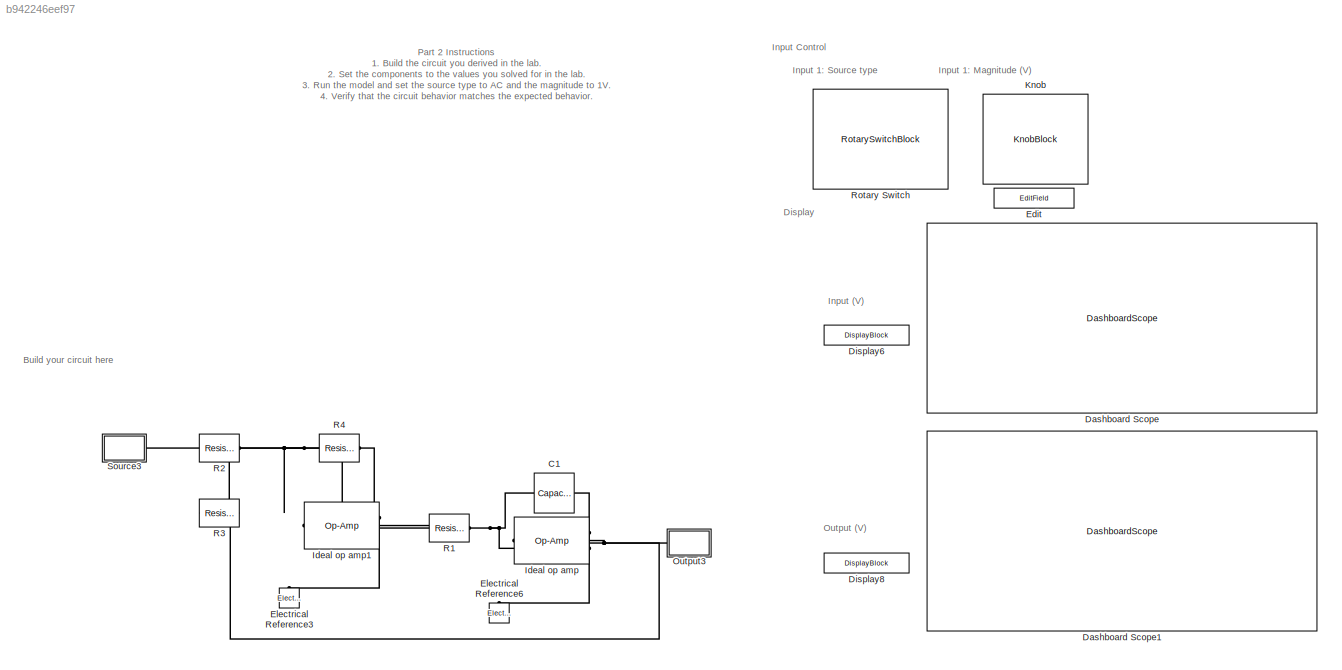
MODEL slx_b942246eef97
KIND model
CONFIG AbsTol = auto
CONFIG EnableMultiTasking = off
CONFIG FixedStep = auto
CONFIG MaxStep = 1e-5
CONFIG MinStep = auto
CONFIG RelTol = 1e-3
CONFIG SampleTimeConstraint = Unconstrained
CONFIG SolverName = VariableStepAuto
CONFIG StartTime = 0.0
CONFIG StopTime = inf
BLOCK [Reference] C1  REF=fl_lib/Electrical/Electrical Elements/Capacitor
  AttributesFormatString = %<c> %<c_unit>
  NameLocation = top
  Ports = [0, 0, 0, 0, 0, 1, 1]
  SourceBlock = fl_lib/Electrical/Electrical Elements/Capacitor
  SourceProductBaseCode = SS
  SourceType = Capacitor
BLOCK [DashboardScope] Dashboard Scope
  ScaleAtStop = off
  TimeSpan = 0.10000000000000001
  Ymax = 10
  Ymin = -10
BLOCK [DashboardScope] Dashboard Scope1
  ScaleAtStop = off
  TimeSpan = 0.10000000000000001
  Ymax = 10
  Ymin = -10
BLOCK [DisplayBlock] Display6
  Alignment = Right
  Format = Custom
  FormatString = %0.4f
  LabelPosition = Hide
  Transparency = 1
BLOCK [DisplayBlock] Display8
  Alignment = Right
  Format = Custom
  FormatString = %0.4f
  LabelPosition = Hide
  Transparency = 1
BLOCK [EditField] Edit
  Alignment = Center
  LabelPosition = Hide
  ShowInitialText = on
BLOCK [Reference] Electrical Reference3  REF=fl_lib/Electrical/Electrical Elements/Electrical Reference
  NameLocation = right
  Ports = [0, 0, 0, 0, 0, 1]
  SourceBlock = fl_lib/Electrical/Electrical Elements/Electrical Reference
  SourceProductBaseCode = SS
  SourceType = Electrical Reference
BLOCK [Reference] Electrical Reference6  REF=fl_lib/Electrical/Electrical Elements/Electrical Reference
  NameLocation = right
  Ports = [0, 0, 0, 0, 0, 1]
  SourceBlock = fl_lib/Electrical/Electrical Elements/Electrical Reference
  SourceProductBaseCode = SS
  SourceType = Electrical Reference
BLOCK [Reference] Ideal op amp  REF=fl_lib/Electrical/Electrical Elements/Op-Amp
  Ports = [0, 0, 0, 0, 0, 2, 1]
  SourceBlock = fl_lib/Electrical/Electrical Elements/Op-Amp
  SourceProductBaseCode = SS
  SourceType = Op-Amp
BLOCK [Reference] Ideal op amp1  REF=fl_lib/Electrical/Electrical Elements/Op-Amp
  Ports = [0, 0, 0, 0, 0, 2, 1]
  SourceBlock = fl_lib/Electrical/Electrical Elements/Op-Amp
  SourceProductBaseCode = SS
  SourceType = Op-Amp
BLOCK [KnobBlock] Knob
  LabelPosition = Hide
  ScaleMax = 4
  ScaleMin = -4
  TickInterval = 1
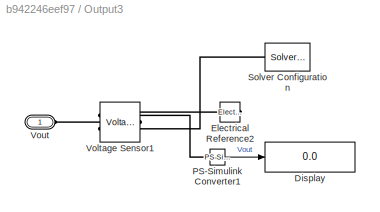
BLOCK [SubSystem] Output3
  Ports = [0, 0, 0, 0, 0, 1]
  RequestExecContextInheritance = off
BLOCK [Display] Output3/Display
  Decimation = 1
  Ports = [1]
BLOCK [Reference] Output3/Electrical Reference2  REF=fl_lib/Electrical/Electrical Elements/Electrical Reference
  NameLocation = top
  Ports = [0, 0, 0, 0, 0, 1]
  SourceBlock = fl_lib/Electrical/Electrical Elements/Electrical Reference
  SourceProductBaseCode = SS
  SourceType = Electrical Reference
BLOCK [Reference] Output3/PS-Simulink Converter1  REF=nesl_utility/PS-Simulink
Converter
  Ports = [0, 1, 0, 0, 0, 1]
  SourceBlock = nesl_utility/PS-Simulink\nConverter
  SourceProductBaseCode = PW,SS
  SourceType = PS-Simulink\nConverter
BLOCK [Reference] Output3/Solver Configuration  REF=nesl_utility/Solver
Configuration
  NameLocation = top
  Ports = [0, 0, 0, 0, 0, 0, 1]
  SourceBlock = nesl_utility/Solver\nConfiguration
  SourceProductBaseCode = PW,SS
  SourceType = Solver\nConfiguration
BLOCK [Reference] Output3/Voltage Sensor1  REF=fl_lib/Electrical/Electrical Sensors/Voltage Sensor
  NameLocation = top
  Ports = [0, 0, 0, 0, 0, 1, 2]
  SourceBlock = fl_lib/Electrical/Electrical Sensors/Voltage Sensor
  SourceProductBaseCode = SS
  SourceType = Voltage Sensor
BLOCK [PMIOPort] Output3/Vout
  Side = Left
BLOCK [Reference] R1  REF=fl_lib/Electrical/Electrical Elements/Resistor
  AttributesFormatString = %<R> %<R_unit>
  NameLocation = top
  Ports = [0, 0, 0, 0, 0, 1, 1]
  SourceBlock = fl_lib/Electrical/Electrical Elements/Resistor
  SourceProductBaseCode = SS
  SourceType = Resistor
BLOCK [Reference] R2  REF=fl_lib/Electrical/Electrical Elements/Resistor
  AttributesFormatString = %<R> %<R_unit>
  NameLocation = top
  Ports = [0, 0, 0, 0, 0, 1, 1]
  SourceBlock = fl_lib/Electrical/Electrical Elements/Resistor
  SourceProductBaseCode = SS
  SourceType = Resistor
BLOCK [Reference] R3  REF=fl_lib/Electrical/Electrical Elements/Resistor
  AttributesFormatString = %<R> %<R_unit>
  Ports = [0, 0, 0, 0, 0, 1, 1]
  SourceBlock = fl_lib/Electrical/Electrical Elements/Resistor
  SourceProductBaseCode = SS
  SourceType = Resistor
BLOCK [Reference] R4  REF=fl_lib/Electrical/Electrical Elements/Resistor
  AttributesFormatString = %<R> %<R_unit>
  NameLocation = top
  Ports = [0, 0, 0, 0, 0, 1, 1]
  SourceBlock = fl_lib/Electrical/Electrical Elements/Resistor
  SourceProductBaseCode = SS
  SourceType = Resistor
BLOCK [RotarySwitchBlock] Rotary Switch
  LabelPosition = Hide
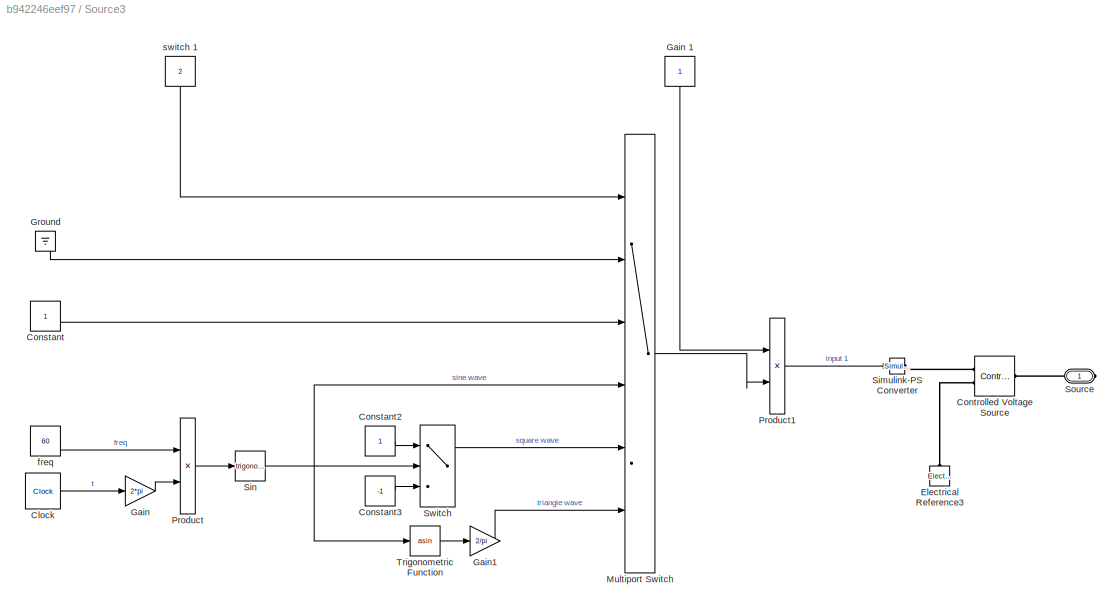
BLOCK [SubSystem] Source3
  Ports = [0, 0, 0, 0, 0, 0, 1]
  RequestExecContextInheritance = off
BLOCK [Clock] Source3/Clock
BLOCK [Constant] Source3/Constant
BLOCK [Constant] Source3/Constant2
  SampleTime = 0
BLOCK [Constant] Source3/Constant3
  SampleTime = 0
  Value = -1
BLOCK [Reference] Source3/Controlled Voltage Source  REF=fl_lib/Electrical/Electrical Sources/Controlled Voltage
Source
  NameLocation = top
  Ports = [0, 0, 0, 0, 0, 1, 2]
  SourceBlock = fl_lib/Electrical/Electrical Sources/Controlled Voltage\nSource
  SourceProductBaseCode = SS
  SourceType = Controlled Voltage\nSource
BLOCK [Reference] Source3/Electrical Reference3  REF=fl_lib/Electrical/Electrical Elements/Electrical Reference
  NameLocation = right
  Ports = [0, 0, 0, 0, 0, 1]
  SourceBlock = fl_lib/Electrical/Electrical Elements/Electrical Reference
  SourceProductBaseCode = SS
  SourceType = Electrical Reference
BLOCK [Gain] Source3/Gain
  Gain = 2*pi
BLOCK [Constant] Source3/Gain 1
  NameLocation = top
BLOCK [Gain] Source3/Gain1
  Gain = 2/pi
BLOCK [Ground] Source3/Ground
BLOCK [MultiPortSwitch] Source3/Multiport Switch
  DataPortOrder = Zero-based contiguous
  InputSameDT = off
  Inputs = 5
  Ports = [6, 1]
  SaturateOnIntegerOverflow = off
  zeroidx = on
BLOCK [Product] Source3/Product
  Ports = [2, 1]
BLOCK [Product] Source3/Product1
  Ports = [2, 1]
BLOCK [Reference] Source3/Simulink-PS Converter  REF=nesl_utility/Simulink-PS
Converter
  Ports = [1, 0, 0, 0, 0, 0, 1]
  SourceBlock = nesl_utility/Simulink-PS\nConverter
  SourceProductBaseCode = PW,SS
  SourceType = Simulink-PS\nConverter
BLOCK [Trigonometry] Source3/Sin
  Ports = [1, 1]
BLOCK [PMIOPort] Source3/Source
  Side = Right
BLOCK [Switch] Source3/Switch
  Criteria = u2 > Threshold
  InputSameDT = off
  SaturateOnIntegerOverflow = off
BLOCK [Trigonometry] Source3/Trigonometric Function
  Operator = asin
  Ports = [1, 1]
BLOCK [Constant] Source3/freq
  NameLocation = left
  SampleTime = 0
  Value = 60
BLOCK [Constant] Source3/switch 1
  NameLocation = top
  Value = 2
ANNOTATION (root): Build your circuit here
ANNOTATION (root): Part 2 Instructions 1. Build the circuit you derived in the lab. 2. Set the components to the values you solved for in the lab. 3. Run the model and set the source type to AC and the magnitude to 1V. 4. Verify that the circuit behavior matches the expected behavior.
ANNOTATION (root): Display
ANNOTATION (root): Input (V)
ANNOTATION (root): Input 1: Magnitude (V)
ANNOTATION (root): Input 1: Source type
ANNOTATION (root): Input Control
ANNOTATION (root): Output (V)
LINE Output3/PS-Simulink Converter1:1 -> Output3/Display:1
LINE Source3/Clock:1 -> Source3/Gain:1
LINE Source3/Constant2:1 -> Source3/Switch:1
LINE Source3/Constant3:1 -> Source3/Switch:3
LINE Source3/Constant:1 -> Source3/Multiport Switch:3
LINE Source3/Gain 1:1 -> Source3/Product1:1
LINE Source3/Gain1:1 -> Source3/Multiport Switch:6
LINE Source3/Gain:1 -> Source3/Product:2
LINE Source3/Ground:1 -> Source3/Multiport Switch:2
LINE Source3/Multiport Switch:1 -> Source3/Product1:2
LINE Source3/Product1:1 -> Source3/Simulink-PS Converter:1
LINE Source3/Product:1 -> Source3/Sin:1
NET Source3/Sin:1 -> Source3/Multiport Switch:4, Source3/Switch:2, Source3/Trigonometric Function:1
LINE Source3/Switch:1 -> Source3/Multiport Switch:5
LINE Source3/Trigonometric Function:1 -> Source3/Gain1:1
LINE Source3/freq:1 -> Source3/Product:1
LINE Source3/switch 1:1 -> Source3/Multiport Switch:1
PNET net1: C1:LConn1 -- Ideal op amp:LConn2 -- R1:LConn1
PNET net2: C1:RConn1 -- Ideal op amp:RConn1 -- Output3:LConn1 -- R3:RConn1
PLINE Electrical Reference3:LConn1 -- Ideal op amp1:LConn1
PLINE Electrical Reference6:LConn1 -- Ideal op amp:LConn1
PNET net3: Ideal op amp1:LConn2 -- R2:LConn1 -- R3:LConn1 -- R4:RConn1
PNET net4: Ideal op amp1:RConn1 -- R1:RConn1 -- R4:LConn1
PNET net5: Output3/Electrical Reference2:LConn1 -- Output3/Solver Configuration:RConn1 -- Output3/Voltage Sensor1:RConn2
PLINE Output3/PS-Simulink Converter1:LConn1 -- Output3/Voltage Sensor1:RConn1
PLINE Output3/Voltage Sensor1:LConn1 -- Output3/Vout:RConn1
PLINE R2:RConn1 -- Source3:RConn1
PLINE Source3/Controlled Voltage Source:LConn1 -- Source3/Source:RConn1
PLINE Source3/Controlled Voltage Source:RConn1 -- Source3/Simulink-PS Converter:RConn1
PLINE Source3/Controlled Voltage Source:RConn2 -- Source3/Electrical Reference3:LConn1
note: NET lines group one-source signal fan-out (src -> all destinations, sorted); 1:1 wires keep LINE; PNET lines group multi-terminal physical nets as a canonical sorted terminal list (undirected conserving connections); 2-terminal nets keep the pairwise PLINE form
